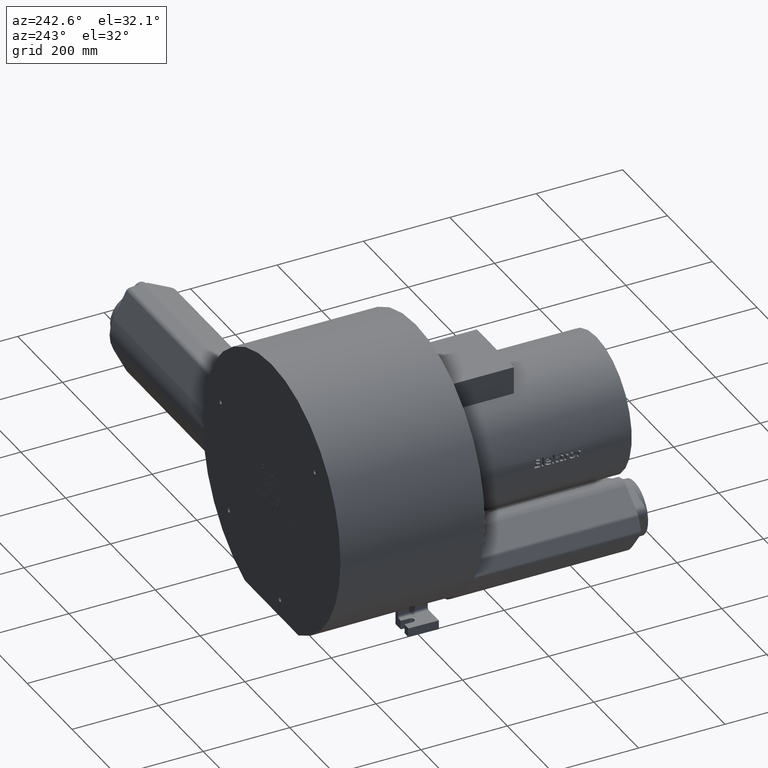
[diagram: clean part render]
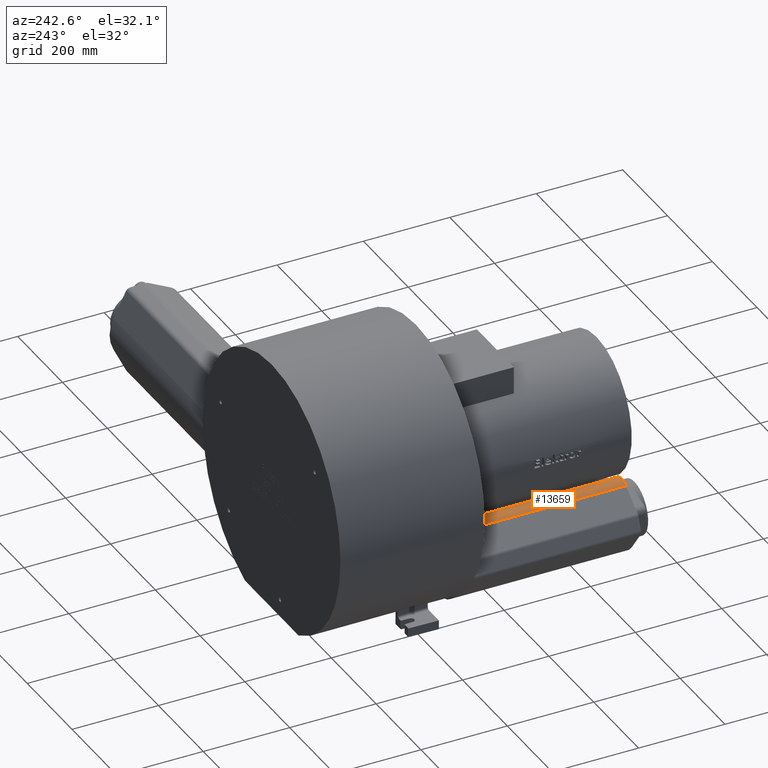
[diagram: same view with one face highlighted and labeled with its STEP entity id]
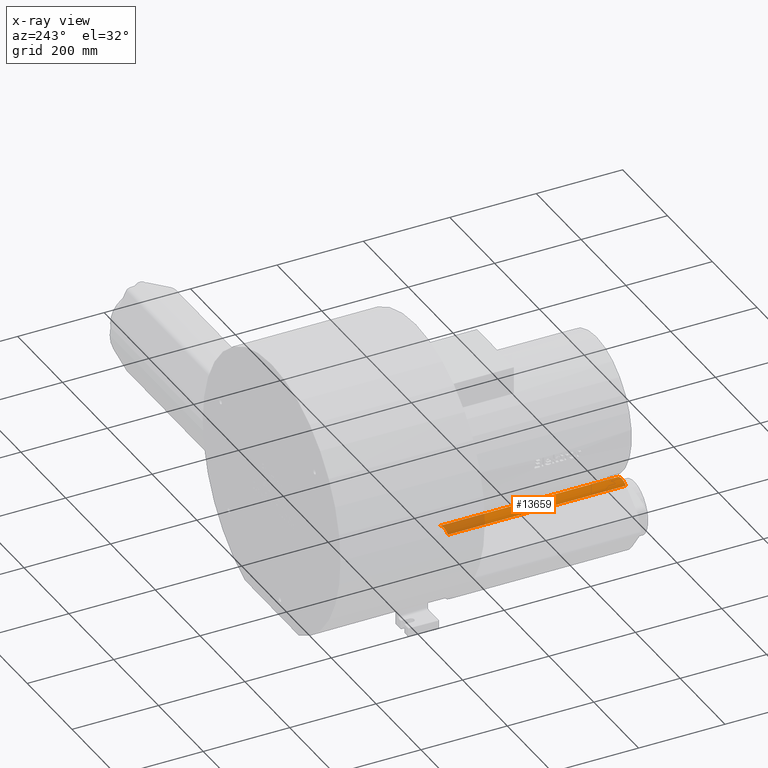
[diagram: x-ray of the same camera — body ghosted, the highlighted face saturated]
A machine part, auxiliary view. The second image highlights one B-rep face of the part: STEP entity #13659.
The next image is the same camera in x-ray: the body ghosted, the highlighted face saturated — about 22% of this face is hidden behind the body in this view.
In plain terms, the highlighted cylindrical surface (edge-blend (fillet) strip) has radius 31.6952 mm, axis along (-0, -1, 0).
Its self-contained STEP definition (entity closure, byte-faithful):
#90=CIRCLE('',#14354,31.6951599892418);
#139=CIRCLE('',#14468,31.6951599892418);
#255=CYLINDRICAL_SURFACE('',#14489,31.6951599892418);
#1296=FACE_OUTER_BOUND('',#2073,.T.);
#2073=EDGE_LOOP('',(#9451,#9452,#9453,#9454));
#3006=LINE('',#19186,#4275);
#3007=LINE('',#19188,#4276);
#4275=VECTOR('',#15797,412.);
#4276=VECTOR('',#15800,412.);
#5445=VERTEX_POINT('',#18626);
#5446=VERTEX_POINT('',#18628);
#5561=VERTEX_POINT('',#19143);
#5562=VERTEX_POINT('',#19145);
#6847=EDGE_CURVE('',#5445,#5446,#90,.T.);
#7012=EDGE_CURVE('',#5561,#5562,#139,.T.);
#7031=EDGE_CURVE('',#5561,#5446,#3006,.T.);
#7032=EDGE_CURVE('',#5562,#5445,#3007,.T.);
#9451=ORIENTED_EDGE('',*,*,#7012,.F.);
#9452=ORIENTED_EDGE('',*,*,#7031,.T.);
#9453=ORIENTED_EDGE('',*,*,#6847,.F.);
#9454=ORIENTED_EDGE('',*,*,#7032,.F.);
#13659=ADVANCED_FACE('',(#1296),#255,.T.);
#14354=AXIS2_PLACEMENT_3D('',#18629,#15423,#15424);
#14468=AXIS2_PLACEMENT_3D('',#19146,#15746,#15747);
#14489=AXIS2_PLACEMENT_3D('',#19187,#15798,#15799);
#15423=DIRECTION('center_axis',(-2.7755575615627E-17,-1.,5.64283143708145E-15));
#15424=DIRECTION('ref_axis',(0.642484418379764,4.30626214406262E-15,0.766298748621722));
#15746=DIRECTION('center_axis',(2.7755575615627E-17,1.,-5.64283143708145E-15));
#15747=DIRECTION('ref_axis',(0.642484418379764,4.30626214406262E-15,0.766298748621722));
#15797=DIRECTION('',(-2.7755575615627E-17,-1.,5.64283143708145E-15));
#15798=DIRECTION('center_axis',(-2.7755575615627E-17,-1.,5.64283143708145E-15));
#15799=DIRECTION('ref_axis',(0.642484418379764,4.30626214406262E-15,0.766298748621722));
#15800=DIRECTION('',(-2.7755575615627E-17,-1.,5.64283143708145E-15));
#18626=CARTESIAN_POINT('',(-131.45538358248,-496.984342737877,-409.465758077593));
#18628=CARTESIAN_POINT('',(-170.89335692664,-496.984342737877,-408.440615802231));
#18629=CARTESIAN_POINT('Origin',(-151.819030013621,-496.984342737877,-433.753719514714));
#19143=CARTESIAN_POINT('',(-170.89335692664,-84.9843427378765,-408.440615802233));
#19145=CARTESIAN_POINT('',(-131.45538358248,-84.9843427378765,-409.465758077595));
#19146=CARTESIAN_POINT('Origin',(-151.819030013621,-84.9843427378767,-433.753719514717));
#19186=CARTESIAN_POINT('',(-170.89335692664,-84.9843427378765,-408.440615802233));
#19187=CARTESIAN_POINT('Origin',(-151.819030013621,-84.9843427378767,-433.753719514717));
#19188=CARTESIAN_POINT('',(-131.45538358248,-84.9843427378765,-409.465758077595));